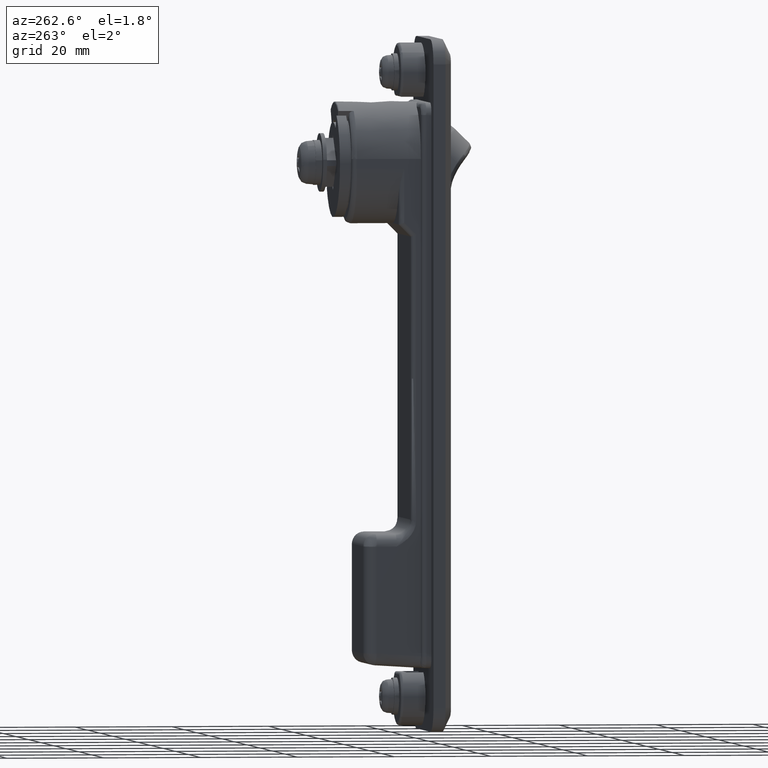
[diagram: clean part render]
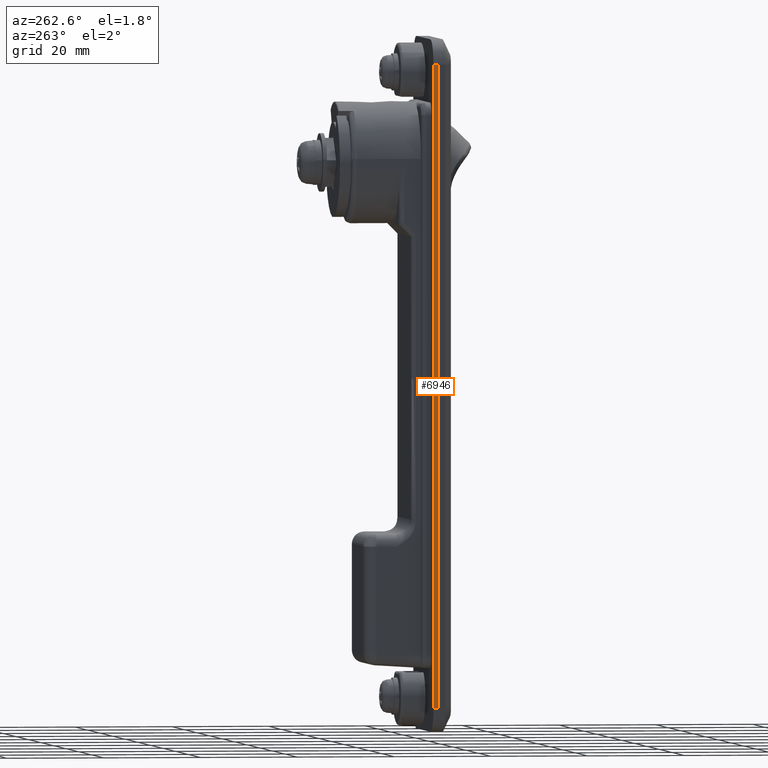
[diagram: same view with one face highlighted and labeled with its STEP entity id]
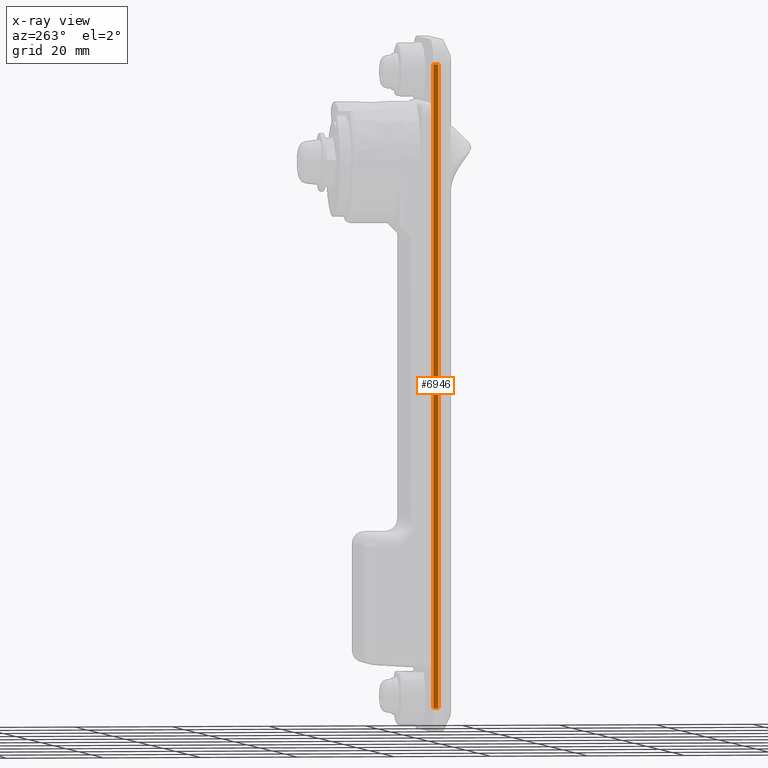
[diagram: x-ray of the same camera — body ghosted, the highlighted face saturated]
A machine part, auxiliary view. The second image highlights one B-rep face of the part: STEP entity #6946.
The next image is the same camera in x-ray: the body ghosted, the highlighted face saturated — about 0% of this face is hidden behind the body in this view.
In plain terms, the highlighted face is a freeform B-spline surface patch.
Its self-contained STEP definition (entity closure, byte-faithful):
#6274=CARTESIAN_POINT('',(0.0,16.0,20.500000000000000));
#6275=VERTEX_POINT('',#6274);
#6289=CARTESIAN_POINT('',(0.0,16.0,-111.500000000000000));
#6290=VERTEX_POINT('',#6289);
#6291=CARTESIAN_POINT('',(0.0,16.0,20.500000000000000));
#6292=CARTESIAN_POINT('',(0.0,16.0,-111.500000000000000));
#6293=QUASI_UNIFORM_CURVE('',1,(#6291,#6292),.UNSPECIFIED.,.F.,.U.);
#6294=EDGE_CURVE('',#6275,#6290,#6293,.T.);
#6516=CARTESIAN_POINT('',(1.000000000000112,16.0,-111.500000000000000));
#6517=VERTEX_POINT('',#6516);
#6531=CARTESIAN_POINT('',(1.000000000000112,16.0,20.500000000000000));
#6532=VERTEX_POINT('',#6531);
#6533=CARTESIAN_POINT('',(1.000000000000112,16.0,20.500000000000000));
#6534=CARTESIAN_POINT('',(1.000000000000112,16.0,-111.500000000000000));
#6535=QUASI_UNIFORM_CURVE('',1,(#6533,#6534),.UNSPECIFIED.,.F.,.U.);
#6536=EDGE_CURVE('',#6532,#6517,#6535,.T.);
#6921=CARTESIAN_POINT('',(1.000000000000112,16.0,-111.500000000000000));
#6922=CARTESIAN_POINT('',(0.0,16.0,-111.500000000000000));
#6923=QUASI_UNIFORM_CURVE('',1,(#6921,#6922),.UNSPECIFIED.,.F.,.U.);
#6924=EDGE_CURVE('',#6517,#6290,#6923,.T.);
#6931=CARTESIAN_POINT('',(-0.049949998061811,16.0,-118.093399744158400));
#6932=CARTESIAN_POINT('',(-0.049949998061811,16.0,27.093403284674292));
#6933=CARTESIAN_POINT('',(1.049950024884014,16.0,-118.093399744158400));
#6934=CARTESIAN_POINT('',(1.049950024884014,16.0,27.093403284674292));
#6935=B_SPLINE_SURFACE_WITH_KNOTS('',1,1,((#6931,#6933),(#6932,#6934)),.UNSPECIFIED.,.F.,.F.,.U.,(2,2),(2,2),(0.0,145.186803028832710),(0.041708334948495,0.958291687403247),.UNSPECIFIED.);
#6936=ORIENTED_EDGE('',*,*,#6294,.F.);
#6937=CARTESIAN_POINT('',(1.000000000000112,16.0,20.500000000000000));
#6938=CARTESIAN_POINT('',(0.0,16.0,20.500000000000000));
#6939=QUASI_UNIFORM_CURVE('',1,(#6937,#6938),.UNSPECIFIED.,.F.,.U.);
#6940=EDGE_CURVE('',#6532,#6275,#6939,.T.);
#6941=ORIENTED_EDGE('',*,*,#6940,.F.);
#6942=ORIENTED_EDGE('',*,*,#6536,.T.);
#6943=ORIENTED_EDGE('',*,*,#6924,.T.);
#6944=EDGE_LOOP('',(#6936,#6941,#6942,#6943));
#6945=FACE_OUTER_BOUND('',#6944,.T.);
#6946=ADVANCED_FACE('',(#6945),#6935,.T.);